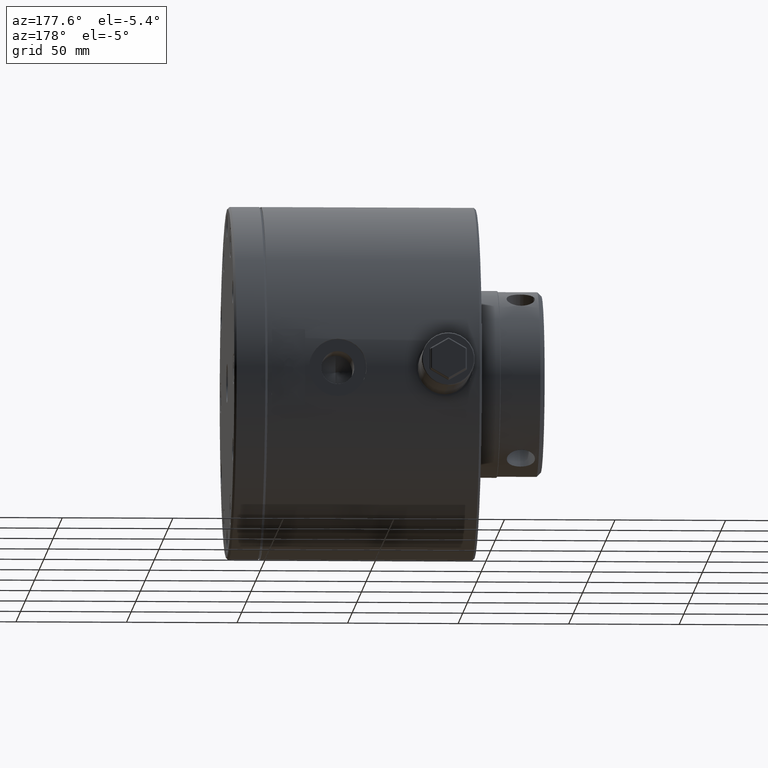
[diagram: clean part render]
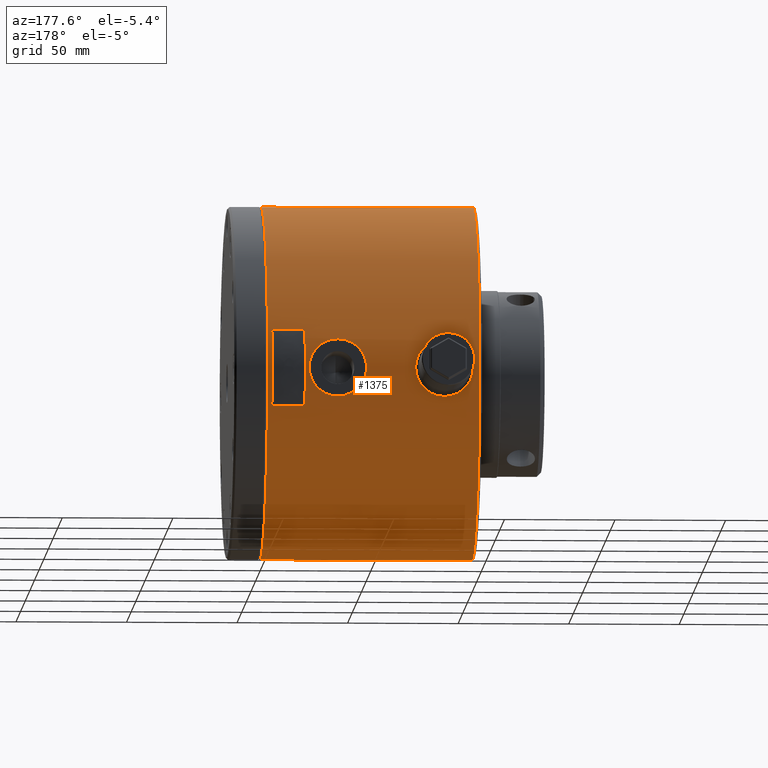
[diagram: same view with one face highlighted and labeled with its STEP entity id]
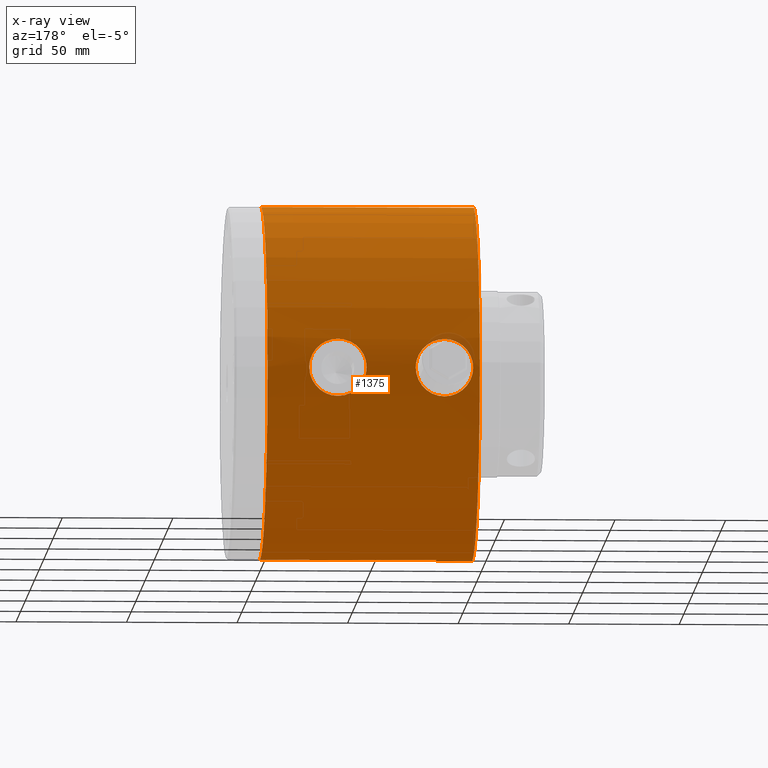
[diagram: x-ray of the same camera — body ghosted, the highlighted face saturated]
A machine part, auxiliary view. The second image highlights one B-rep face of the part: STEP entity #1375.
The next image is the same camera in x-ray: the body ghosted, the highlighted face saturated — about 1% of this face is hidden behind the body in this view.
In plain terms, the highlighted cylindrical surface (partial cylindrical patch) has radius 80 mm, axis along (1, 0, 0).
Its self-contained STEP definition (entity closure, byte-faithful):
#381 = CARTESIAN_POINT ( 'NONE',  ( -30.09964344900794900, 78.95383902079534300, 12.89546893762703000 ) ) ;
#536 = ORIENTED_EDGE ( 'NONE', *, *, #23124, .T. ) ;
#1013 = CARTESIAN_POINT ( 'NONE',  ( -75.81286066554427800, 79.04374652429665100, 12.33673770048331300 ) ) ;
#1026 = CARTESIAN_POINT ( 'NONE',  ( 0.0000000000000000000, 9.797174393178826100E-015, 80.00000000000000000 ) ) ;
#1121 = CARTESIAN_POINT ( 'NONE',  ( -67.66480960438912000, 79.89401141627573100, 4.191401066810772800 ) ) ;
#1209 = CARTESIAN_POINT ( 'NONE',  ( -20.13806835266995100, 79.79323827350121700, 5.760348108859330900 ) ) ;
#1219 = CARTESIAN_POINT ( 'NONE',  ( -72.08305420856973500, 79.33203430594967600, 10.31997314685027300 ) ) ;
#1319 = CARTESIAN_POINT ( 'NONE',  ( -67.43760634001266400, 79.92996197274713700, -3.371525206087473000 ) ) ;
#1375 = ADVANCED_FACE ( 'NONE', ( #2504, #19606, #24854 ), #6331, .T. ) ;
#1417 = CARTESIAN_POINT ( 'NONE',  ( -74.22299667483548500, 79.14389417287067400, -11.67705584014035100 ) ) ;
#1427 = CARTESIAN_POINT ( 'NONE',  ( -89.77522799559490400, 79.53918937189674000, 8.580657282837650600 ) ) ;
#1514 = CARTESIAN_POINT ( 'NONE',  ( -75.40433670215388400, 79.06937255033750500, -12.16806184160032200 ) ) ;
#1637 = CARTESIAN_POINT ( 'NONE',  ( -18.88235625100630700, 79.98648837467595700, -1.693760567031938200 ) ) ;
#1736 = CARTESIAN_POINT ( 'NONE',  ( -31.36248812587403400, 78.93672764930676100, -12.99973184691376100 ) ) ;
#2016 = CARTESIAN_POINT ( 'NONE',  ( -93.00000000000000000, 80.00000000000000000, -4.142082507333374800E-015 ) ) ;
#2031 = CARTESIAN_POINT ( 'NONE',  ( -43.64055780795961000, 79.81962784138552500, -5.383335847124600400 ) ) ;
#2439 = DIRECTION ( 'NONE',  ( 0.0000000000000000000, 0.0000000000000000000, -1.000000000000000000 ) ) ;
#2504 = FACE_BOUND ( 'NONE', #27626, .T. ) ;
#2682 = CARTESIAN_POINT ( 'NONE',  ( -42.37319983605495800, 79.64130795527019300, 7.575468859314091800 ) ) ;
#2703 = CARTESIAN_POINT ( 'NONE',  ( -96.00000000000000000, 0.0000000000000000000, -80.00000000000000000 ) ) ;
#2781 = CARTESIAN_POINT ( 'NONE',  ( -33.49891951828073600, 78.95050577261295600, 12.91689973074531700 ) ) ;
#2885 = CARTESIAN_POINT ( 'NONE',  ( -44.71541230277586700, 79.98613101206169100, 1.706288805139967600 ) ) ;
#2988 = CARTESIAN_POINT ( 'NONE',  ( -44.36384534968731000, 79.93018951058637400, 3.366342855497707300 ) ) ;
#3081 = CARTESIAN_POINT ( 'NONE',  ( -31.38017976504769300, 78.93665717339219200, 13.00015978043656300 ) ) ;
#3297 = CARTESIAN_POINT ( 'NONE',  ( -18.96847630013395000, 79.97275304758385100, 2.129100069173480500 ) ) ;
#3411 = CARTESIAN_POINT ( 'NONE',  ( -74.24143099862902800, 79.14556697331825300, 11.66278353110015700 ) ) ;
#3528 = CARTESIAN_POINT ( 'NONE',  ( -67.00000000000000000, 79.99999999999998600, 0.4245904416442586900 ) ) ;
#3593 = CARTESIAN_POINT ( 'NONE',  ( -92.99999999999998600, 80.00000000000001400, 0.8604759384809521600 ) ) ;
#3623 = CARTESIAN_POINT ( 'NONE',  ( -19.21852294762961900, 79.93288736820254300, 3.380932628697642900 ) ) ;
#3637 = CARTESIAN_POINT ( 'NONE',  ( -85.37163108470501500, 79.11827963390374000, 11.84587400951331800 ) ) ;
#3733 = CARTESIAN_POINT ( 'NONE',  ( -68.15195435480528400, 79.82073988824491600, -5.366851581470632100 ) ) ;
#3748 = CARTESIAN_POINT ( 'NONE',  ( -89.48969434867646600, 79.50450225451079700, 8.895215470127560300 ) ) ;
#3836 = CARTESIAN_POINT ( 'NONE',  ( -77.86893480804791100, 78.96435247455056600, -12.83113820291025000 ) ) ;
#3947 = CARTESIAN_POINT ( 'NONE',  ( -72.06823744942019500, 79.33108181988109200, -10.33468190108031800 ) ) ;
#4155 = CARTESIAN_POINT ( 'NONE',  ( -87.91257020495839900, 79.33158928487638700, -10.32343520517883400 ) ) ;
#4266 = CARTESIAN_POINT ( 'NONE',  ( -97.00000000000000000, 0.0000000000000000000, -80.00000000000000000 ) ) ;
#4269 = CARTESIAN_POINT ( 'NONE',  ( -43.96562697909858700, 79.86849603772576200, -4.601807715669837200 ) ) ;
#4369 = CARTESIAN_POINT ( 'NONE',  ( -39.71257020495833200, 79.33158928487637200, -10.32343520517884100 ) ) ;
#4383 = EDGE_CURVE ( 'NONE', #20057, #24185, #17180, .T. ) ;
#4574 = CARTESIAN_POINT ( 'NONE',  ( -43.45915193633449300, 79.79283473184713700, -5.765786677228317300 ) ) ;
#4898 = DIRECTION ( 'NONE',  ( 1.000000000000000000, 0.0000000000000000000, 0.0000000000000000000 ) ) ;
#5252 = CARTESIAN_POINT ( 'NONE',  ( -24.92632791272416500, 79.23461801229970500, 11.04226568565484400 ) ) ;
#5344 = CARTESIAN_POINT ( 'NONE',  ( -40.39160316312076300, 79.40064209146794400, 9.792904750514562600 ) ) ;
#5438 = VERTEX_POINT ( 'NONE', #30705 ) ;
#5446 = CARTESIAN_POINT ( 'NONE',  ( -34.75811009526137200, 78.99097685110076800, 12.66620468847097000 ) ) ;
#5555 = CARTESIAN_POINT ( 'NONE',  ( -28.42394444755519300, 79.00444634969737500, 12.58275967073811700 ) ) ;
#5754 = CARTESIAN_POINT ( 'NONE',  ( -18.82074836649238100, 79.99662021152426000, 0.8502336122172001700 ) ) ;
#5861 = CARTESIAN_POINT ( 'NONE',  ( -85.75451392133744800, 79.14527688470458600, 11.66473851177715200 ) ) ;
#6076 = CARTESIAN_POINT ( 'NONE',  ( -78.29964344900793100, 78.95383902079540000, 12.89546893762700600 ) ) ;
#6183 = CARTESIAN_POINT ( 'NONE',  ( -79.58017976504766000, 78.93665717339220600, 13.00015978043654200 ) ) ;
#6190 = CARTESIAN_POINT ( 'NONE',  ( -35.97557122104632300, 79.04598810698766400, -12.31858332975050500 ) ) ;
#6289 = CARTESIAN_POINT ( 'NONE',  ( -86.87236625009315100, 79.23448933905697800, 11.04324195382540800 ) ) ;
#6331 = CYLINDRICAL_SURFACE ( 'NONE', #26109, 80.00000000000000000 ) ;
#6394 = CARTESIAN_POINT ( 'NONE',  ( -91.25826035809342300, 79.73524363140778300, -6.513961436116923100 ) ) ;
#6412 = CARTESIAN_POINT ( 'NONE',  ( -20.53418683070336600, 79.73631017478381000, -6.500968332554022800 ) ) ;
#6496 = CARTESIAN_POINT ( 'NONE',  ( -67.08235625100627400, 79.98648837467594300, -1.693760567031966900 ) ) ;
#6512 = CARTESIAN_POINT ( 'NONE',  ( -19.62783383692260500, 79.86949329874201500, -4.584501325835229400 ) ) ;
#6726 = CARTESIAN_POINT ( 'NONE',  ( -43.05826035809339900, 79.73524363140778300, -6.513961436116925800 ) ) ;
#6826 = DIRECTION ( 'NONE',  ( 1.000000000000000000, 0.0000000000000000000, 0.0000000000000000000 ) ) ;
#7026 = CARTESIAN_POINT ( 'NONE',  ( -41.58476434054505700, 79.53859521750038700, -8.600812011084343600 ) ) ;
#7567 = CARTESIAN_POINT ( 'NONE',  ( -44.80000000000001800, 80.00000000000001400, 0.8604759384809525000 ) ) ;
#7821 = B_SPLINE_CURVE_WITH_KNOTS ( 'NONE', 3,
 ( #8523, #27873, #1637, #13410, #11164, #18601, #6512, #18496, #13615, #6412, #23329, #8834, #30525, #21016, #16041, #25739, #25540, #20704, #28286, #15828, #13819, #30731, #16243, #21116, #1736, #25430, #13510, #23134, #10945, #6190, #11054, #30424, #23947, #23744, #4369, #26053, #28584, #7026, #26267, #11578, #6726, #4574, #2031, #4269, #28389, #23645, #18905, #14111, #19010, #28489 ),
 .UNSPECIFIED., .F., .F.,
 ( 4, 2, 2, 2, 2, 2, 2, 2, 2, 2, 2, 2, 2, 2, 2, 2, 2, 2, 2, 2, 2, 2, 2, 2, 4 ),
 ( 0.04071145708490809400, 0.04325529113787240900, 0.04452720816435456300, 0.04579912519083671800, 0.04707104221731887200, 0.04834295924380102600, 0.05088679329676534100, 0.05343062734972965600, 0.05597446140269396500, 0.05724637842917612600, 0.05851829545565828700, 0.05979021248214044800, 0.06106212950862260200, 0.06360596356158693100, 0.06487788058806910600, 0.06614979761455128100, 0.06869363166751563100, 0.06996554869399780600, 0.07123746572047998100, 0.07378129977344433100, 0.07505321679992652000, 0.07632513382640869500, 0.07759705085289087000, 0.07886896787937305900, 0.08141280193233740900 ),
 .UNSPECIFIED. ) ;
#8177 = CARTESIAN_POINT ( 'NONE',  ( -18.80000000000000100, 80.00000000000000000, 6.098591710779075900E-015 ) ) ;
#8296 = CARTESIAN_POINT ( 'NONE',  ( -90.57319983605495400, 79.64130795527019300, 7.575468859314087300 ) ) ;
#8398 = CARTESIAN_POINT ( 'NONE',  ( -86.50396397425900800, 79.20329519700644000, 11.26405822252994700 ) ) ;
#8513 = CARTESIAN_POINT ( 'NONE',  ( -68.15378630199396100, 79.82046613181881900, 5.371071799080898000 ) ) ;
#8523 = CARTESIAN_POINT ( 'NONE',  ( -18.80000000000000100, 80.00000000000000000, 6.098591710779075900E-015 ) ) ;
#8610 = CARTESIAN_POINT ( 'NONE',  ( -81.69613664690930900, 78.95052415793117000, -12.91675882031245200 ) ) ;
#8710 = CARTESIAN_POINT ( 'NONE',  ( -79.56248812587408300, 78.93672764930677500, -12.99973184691378800 ) ) ;
#8720 = CARTESIAN_POINT ( 'NONE',  ( -81.69891951828067500, 78.95050577261294200, 12.91689973074529100 ) ) ;
#8814 = CARTESIAN_POINT ( 'NONE',  ( -68.73418683070335100, 79.73631017478379600, -6.500968332554045000 ) ) ;
#8834 = CARTESIAN_POINT ( 'NONE',  ( -21.46629296452822500, 79.60882538287315000, -7.933571463228618700 ) ) ;
#8921 = CARTESIAN_POINT ( 'NONE',  ( -76.62613917152486900, 79.00770160024821100, -12.56180135332665600 ) ) ;
#9023 = CARTESIAN_POINT ( 'NONE',  ( -78.28821820116313300, 78.95410843831774600, -12.89381964007660200 ) ) ;
#9198 = CARTESIAN_POINT ( 'NONE',  ( -96.00000000000000000, 9.797174393178826100E-015, 80.00000000000000000 ) ) ;
#9248 = ORIENTED_EDGE ( 'NONE', *, *, #25961, .F. ) ;
#9334 = CARTESIAN_POINT ( 'NONE',  ( -92.91544197976630000, 79.98613102572902300, -1.710113772030713600 ) ) ;
#9352 = ORIENTED_EDGE ( 'NONE', *, *, #4383, .F. ) ;
#9444 = EDGE_CURVE ( 'NONE', #9789, #15743, #23110, .T. ) ;
#9789 = VERTEX_POINT ( 'NONE', #22101 ) ;
#10001 = CARTESIAN_POINT ( 'NONE',  ( -30.95419304475494500, 78.94005873526263900, 12.97955862563378700 ) ) ;
#10094 = CARTESIAN_POINT ( 'NONE',  ( -32.65439712741153500, 78.93673657538181500, 12.99967764734549800 ) ) ;
#10194 = CARTESIAN_POINT ( 'NONE',  ( -41.57522799559492200, 79.53918937189674000, 8.580657282837659500 ) ) ;
#10398 = CARTESIAN_POINT ( 'NONE',  ( -27.61286066554427900, 79.04374652429666500, 12.33673770048334200 ) ) ;
#10710 = CARTESIAN_POINT ( 'NONE',  ( -18.80000000000001100, 80.00000000000000000, 0.4245904416442843300 ) ) ;
#10729 = CARTESIAN_POINT ( 'NONE',  ( -68.74112660721401400, 79.73532751860699400, 6.513066098808851100 ) ) ;
#10766 = DIRECTION ( 'NONE',  ( 0.0000000000000000000, 0.0000000000000000000, -1.000000000000000000 ) ) ;
#10834 = CARTESIAN_POINT ( 'NONE',  ( -73.48991790438864800, 79.20379298667492700, 11.26057137738809500 ) ) ;
#10939 = CARTESIAN_POINT ( 'NONE',  ( -67.02074836649237000, 79.99662021152424500, 0.8502336122171746400 ) ) ;
#10945 = CARTESIAN_POINT ( 'NONE',  ( -35.15693883780151200, 79.00697361087021900, -12.56637783584820200 ) ) ;
#11036 = CARTESIAN_POINT ( 'NONE',  ( -68.95548571414453000, 79.70524568839194000, -6.870259711525696900 ) ) ;
#11054 = CARTESIAN_POINT ( 'NONE',  ( -36.38096568131063400, 79.06852314666682000, -12.17356795494033500 ) ) ;
#11140 = CARTESIAN_POINT ( 'NONE',  ( -80.85089875520814900, 78.93659639264240000, -13.00052884443729800 ) ) ;
#11157 = CARTESIAN_POINT ( 'NONE',  ( -79.15419304475491900, 78.94005873526262500, 12.97955862563375900 ) ) ;
#11164 = CARTESIAN_POINT ( 'NONE',  ( -19.23760634001269000, 79.92996197274716500, -3.371525206087456100 ) ) ;
#11254 = CARTESIAN_POINT ( 'NONE',  ( -90.32325129288997800, 79.60745364977937300, -7.947522295468353100 ) ) ;
#11359 = CARTESIAN_POINT ( 'NONE',  ( -68.33310258704366900, 79.79396662134473700, -5.750186117154862100 ) ) ;
#11456 = CARTESIAN_POINT ( 'NONE',  ( -92.55810360373601500, 79.92928664717628400, -3.387570292187122700 ) ) ;
#11476 = EDGE_CURVE ( 'NONE', #16344, #20057, #20835, .T. ) ;
#11578 = CARTESIAN_POINT ( 'NONE',  ( -42.83793770464070900, 79.70433086481520500, -6.880922045899895400 ) ) ;
#12006 = AXIS2_PLACEMENT_3D ( 'NONE', #14422, #4898, #2439 ) ;
#12437 = CARTESIAN_POINT ( 'NONE',  ( -36.38969907606212900, 79.06904001774158500, 12.17020188619018100 ) ) ;
#12535 = CARTESIAN_POINT ( 'NONE',  ( -44.11575126609469800, 79.89156848175969100, 4.183867223431794200 ) ) ;
#12633 = CARTESIAN_POINT ( 'NONE',  ( -39.73796175344674700, 79.33165048441904300, 10.33049883139306000 ) ) ;
#12736 = CARTESIAN_POINT ( 'NONE',  ( -44.46703758824778400, 79.94652688575084200, 2.953977462207162800 ) ) ;
#12940 = DIRECTION ( 'NONE',  ( 1.000000000000000000, 0.0000000000000000000, 0.0000000000000000000 ) ) ;
#12947 = CARTESIAN_POINT ( 'NONE',  ( -18.90498865048305500, 79.98299563035327300, 1.703687898966019400 ) ) ;
#13177 = CARTESIAN_POINT ( 'NONE',  ( -77.87527977192419800, 78.96417310419866500, 12.83224306029899600 ) ) ;
#13283 = CARTESIAN_POINT ( 'NONE',  ( -70.20234012960349900, 79.54013144724281400, 8.587135848237368300 ) ) ;
#13380 = CARTESIAN_POINT ( 'NONE',  ( -92.66354086602132200, 79.94597173090390600, -2.969514336740558300 ) ) ;
#13398 = CARTESIAN_POINT ( 'NONE',  ( -67.00000000000000000, 80.00000000000000000, -1.658887645583564600E-014 ) ) ;
#13410 = CARTESIAN_POINT ( 'NONE',  ( -19.13293772171481800, 79.94653005217627100, -2.954508327815602800 ) ) ;
#13491 = CARTESIAN_POINT ( 'NONE',  ( -91.65915193633449600, 79.79283473184710800, -5.765786677228308400 ) ) ;
#13505 = CARTESIAN_POINT ( 'NONE',  ( -80.85439712741150200, 78.93673657538180100, 12.99967764734547000 ) ) ;
#13510 = CARTESIAN_POINT ( 'NONE',  ( -33.49613664690928500, 78.95052415793117000, -12.91675882031242900 ) ) ;
#13599 = CARTESIAN_POINT ( 'NONE',  ( -82.94422694423443000, 78.99047770852465100, -12.66930985443253200 ) ) ;
#13615 = CARTESIAN_POINT ( 'NONE',  ( -20.13310258704364100, 79.79396662134473700, -5.750186117154837200 ) ) ;
#13699 = CARTESIAN_POINT ( 'NONE',  ( -91.03793770464072600, 79.70433086481519100, -6.880922045899897200 ) ) ;
#13819 = CARTESIAN_POINT ( 'NONE',  ( -28.83789536762789400, 78.99114878722696200, -12.66512860500878200 ) ) ;
#14111 = CARTESIAN_POINT ( 'NONE',  ( -44.71544197976630400, 79.98613102572900900, -1.710113772030727600 ) ) ;
#14356 = VERTEX_POINT ( 'NONE', #28040 ) ;
#14422 = CARTESIAN_POINT ( 'NONE',  ( 0.0000000000000000000, 0.0000000000000000000, 0.0000000000000000000 ) ) ;
#14497 = B_SPLINE_CURVE_WITH_KNOTS ( 'NONE', 3,
 ( #20469, #25296, #6496, #23210, #1319, #30716, #18257, #3733, #11359, #8814, #11036, #20689, #30398, #25621, #3947, #25717, #1417, #1514, #15808, #8921, #23515, #3836, #9023, #16230, #8710, #11140, #8610, #13599, #30297, #25522, #28272, #27960, #18479, #18679, #4155, #23312, #20887, #28167, #11254, #13699, #6394, #13491, #21101, #30615, #25923, #11456, #13380, #9334, #16535, #2016 ),
 .UNSPECIFIED., .F., .F.,
 ( 4, 2, 2, 2, 2, 2, 2, 2, 2, 2, 2, 2, 2, 2, 2, 2, 2, 2, 2, 2, 2, 2, 2, 2, 4 ),
 ( 0.04071145708490815600, 0.04325529113787245800, 0.04452720816435461200, 0.04579912519083675900, 0.04707104221731890600, 0.04834295924380106100, 0.05088679329676538300, 0.05343062734972971200, 0.05597446140269403400, 0.05724637842917620200, 0.05851829545565837000, 0.05979021248214053100, 0.06106212950862269900, 0.06360596356158707000, 0.06487788058806925900, 0.06614979761455143400, 0.06869363166751581200, 0.06996554869399798600, 0.07123746572048014800, 0.07378129977344449800, 0.07505321679992668600, 0.07632513382640887500, 0.07759705085289105000, 0.07886896787937322500, 0.08141280193233760300 ),
 .UNSPECIFIED. ) ;
#14760 = CARTESIAN_POINT ( 'NONE',  ( -24.22289561683041000, 79.29873791193084300, 10.57196711130608700 ) ) ;
#14868 = CARTESIAN_POINT ( 'NONE',  ( -35.17606784740901600, 79.00779916080468000, 12.56118633509741000 ) ) ;
#14972 = CARTESIAN_POINT ( 'NONE',  ( -22.00234012960348900, 79.54013144724281400, 8.587135848237387800 ) ) ;
#15071 = CARTESIAN_POINT ( 'NONE',  ( -37.55451392133746000, 79.14527688470458600, 11.66473851177717300 ) ) ;
#15145 = CIRCLE ( 'NONE', #24351, 80.00000000000000000 ) ;
#15501 = CARTESIAN_POINT ( 'NONE',  ( -76.62394444755516100, 79.00444634969736100, 12.58275967073808800 ) ) ;
#15606 = CARTESIAN_POINT ( 'NONE',  ( -67.10498865048305100, 79.98299563035327300, 1.703687898965990900 ) ) ;
#15678 = CARTESIAN_POINT ( 'NONE',  ( -93.00000000000000000, 80.00000000000000000, -4.142082507333374800E-015 ) ) ;
#15743 = VERTEX_POINT ( 'NONE', #24607 ) ;
#15808 = CARTESIAN_POINT ( 'NONE',  ( -75.81028180546272200, 79.04674385332758400, -12.31373426628660700 ) ) ;
#15828 = CARTESIAN_POINT ( 'NONE',  ( -28.42613917152488400, 79.00770160024818300, -12.56180135332662600 ) ) ;
#15927 = CARTESIAN_POINT ( 'NONE',  ( -84.19065013322435200, 79.04679653637349200, 12.31339464632937300 ) ) ;
#16041 = CARTESIAN_POINT ( 'NONE',  ( -23.86823744942021000, 79.33108181988110600, -10.33468190108028600 ) ) ;
#16230 = CARTESIAN_POINT ( 'NONE',  ( -79.13439864085611900, 78.94029584487098800, -12.97811681734689900 ) ) ;
#16243 = CARTESIAN_POINT ( 'NONE',  ( -30.08821820116311600, 78.95410843831773200, -12.89381964007657200 ) ) ;
#16344 = VERTEX_POINT ( 'NONE', #2703 ) ;
#16434 = DIRECTION ( 'NONE',  ( 0.0000000000000000000, 0.0000000000000000000, -1.000000000000000000 ) ) ;
#16535 = CARTESIAN_POINT ( 'NONE',  ( -93.00000000000000000, 80.00000000000000000, -0.8602622065819369700 ) ) ;
#16589 = EDGE_LOOP ( 'NONE', ( #9248, #22271 ) ) ;
#17180 = CIRCLE ( 'NONE', #12006, 80.00000000000000000 ) ;
#17310 = CARTESIAN_POINT ( 'NONE',  ( -43.48037361146616300, 79.79553171620578700, 5.770158506110940200 ) ) ;
#17576 = B_SPLINE_CURVE_WITH_KNOTS ( 'NONE', 3,
 ( #15678, #3593, #22912, #18273, #18051, #30417, #25634, #27975, #20799, #8296, #30307, #1427, #3748, #18163, #27868, #6289, #8398, #5861, #3637, #23226, #15927, #20700, #25308, #8720, #13505, #6183, #11157, #6076, #13177, #15501, #1013, #17944, #3411, #10834, #30093, #27758, #1219, #20374, #22807, #13283, #25203, #20596, #10729, #23017, #8513, #1121, #27648, #25422, #15606, #10939, #3528, #13398 ),
 .UNSPECIFIED., .F., .F.,
 ( 4, 2, 2, 2, 2, 2, 2, 2, 2, 2, 2, 2, 2, 2, 2, 2, 2, 2, 2, 2, 2, 2, 2, 2, 2, 4 ),
 ( 7.349960090600451200E-019, 0.002544466067806842200, 0.003816699101710262400, 0.005088932135613684300, 0.007633398203420515200, 0.008905631237323918100, 0.01017786427122732200, 0.01272233033903413300, 0.01399456337293752300, 0.01526679640684091100, 0.01653902944074429900, 0.01781126247464769100, 0.02035572854245442500, 0.02162796157635781700, 0.02290019461026120500, 0.02544466067806794300, 0.02671689371197130700, 0.02798912674587467400, 0.02926135977977804100, 0.03053359281368140500, 0.03307805888148810500, 0.03435029191539144100, 0.03562252494929478400, 0.03816699101710147000, 0.03943922405100482000, 0.04071145708490815600 ),
 .UNSPECIFIED. ) ;
#17610 = CARTESIAN_POINT ( 'NONE',  ( -43.08088295147355500, 79.73731768988081100, 6.516349643896920600 ) ) ;
#17944 = CARTESIAN_POINT ( 'NONE',  ( -74.63106713130220300, 79.11808182929083000, 11.84720929483328800 ) ) ;
#18051 = CARTESIAN_POINT ( 'NONE',  ( -92.56384534968734100, 79.93018951058637400, 3.366342855497708600 ) ) ;
#18163 = CARTESIAN_POINT ( 'NONE',  ( -88.59160316312075200, 79.40064209146794400, 9.792904750514555400 ) ) ;
#18200 = CARTESIAN_POINT ( 'NONE',  ( -97.00000000000000000, 0.0000000000000000000, 0.0000000000000000000 ) ) ;
#18257 = CARTESIAN_POINT ( 'NONE',  ( -67.82783383692259300, 79.86949329874200000, -4.584501325835248100 ) ) ;
#18273 = CARTESIAN_POINT ( 'NONE',  ( -92.66703758824778000, 79.94652688575088500, 2.953977462207166400 ) ) ;
#18479 = CARTESIAN_POINT ( 'NONE',  ( -86.50660547075675300, 79.20126350147263800, -11.28655888877269600 ) ) ;
#18496 = CARTESIAN_POINT ( 'NONE',  ( -19.95195435480527400, 79.82073988824491600, -5.366851581470610800 ) ) ;
#18601 = CARTESIAN_POINT ( 'NONE',  ( -19.48486186074684000, 79.89147460076829100, -4.185485550672048300 ) ) ;
#18679 = CARTESIAN_POINT ( 'NONE',  ( -87.56717534498385200, 79.29778180422916000, -10.57915114145375800 ) ) ;
#18905 = CARTESIAN_POINT ( 'NONE',  ( -44.46354086602131200, 79.94597173090390600, -2.969514336740569900 ) ) ;
#19010 = CARTESIAN_POINT ( 'NONE',  ( -44.79999999999999000, 79.99999999999998600, -0.8602622065819436300 ) ) ;
#19127 = VERTEX_POINT ( 'NONE', #9198 ) ;
#19606 = FACE_BOUND ( 'NONE', #16589, .T. ) ;
#19748 = ORIENTED_EDGE ( 'NONE', *, *, #27935, .F. ) ;
#19759 = CARTESIAN_POINT ( 'NONE',  ( -25.28991790438862700, 79.20379298667489800, 11.26057137738812100 ) ) ;
#19858 = CARTESIAN_POINT ( 'NONE',  ( -38.30396397425901300, 79.20329519700645400, 11.26405822252996100 ) ) ;
#19942 = EDGE_LOOP ( 'NONE', ( #27789, #536, #9352, #25675 ) ) ;
#19956 = CARTESIAN_POINT ( 'NONE',  ( -37.17163108470500500, 79.11827963390372500, 11.84587400951333800 ) ) ;
#19977 = EDGE_CURVE ( 'NONE', #5438, #14356, #14497, .T. ) ;
#20057 = VERTEX_POINT ( 'NONE', #21821 ) ;
#20062 = CARTESIAN_POINT ( 'NONE',  ( -29.67527977192418800, 78.96417310419862200, 12.83224306029901400 ) ) ;
#20364 = CARTESIAN_POINT ( 'NONE',  ( -20.75975119080466400, 79.70465953693920400, 6.876914708840176100 ) ) ;
#20374 = CARTESIAN_POINT ( 'NONE',  ( -71.42723738615011100, 79.40016306840529100, 9.782004783413983200 ) ) ;
#20465 = VECTOR ( 'NONE', #12940, 1000.000000000000000 ) ;
#20468 = CARTESIAN_POINT ( 'NONE',  ( -21.46561266371560700, 79.60893287903169800, 7.932000826402526400 ) ) ;
#20469 = CARTESIAN_POINT ( 'NONE',  ( -67.00000000000000000, 80.00000000000000000, -1.658887645583564600E-014 ) ) ;
#20596 = CARTESIAN_POINT ( 'NONE',  ( -68.95975119080469500, 79.70465953693921800, 6.876914708840155700 ) ) ;
#20633 = DIRECTION ( 'NONE',  ( 1.000000000000000000, 0.0000000000000000000, 0.0000000000000000000 ) ) ;
#20689 = CARTESIAN_POINT ( 'NONE',  ( -69.66629296452825300, 79.60882538287316400, -7.933571463228653400 ) ) ;
#20700 = CARTESIAN_POINT ( 'NONE',  ( -83.37606784740900400, 79.00779916080465200, 12.56118633509738900 ) ) ;
#20704 = CARTESIAN_POINT ( 'NONE',  ( -27.20433670215386400, 79.06937255033753300, -12.16806184160029500 ) ) ;
#20799 = CARTESIAN_POINT ( 'NONE',  ( -91.28088295147351500, 79.73731768988078300, 6.516349643896913500 ) ) ;
#20835 = LINE ( 'NONE', #4266, #24218 ) ;
#20887 = CARTESIAN_POINT ( 'NONE',  ( -88.88692786782337400, 79.43481047954506400, -9.497442191696080700 ) ) ;
#21016 = CARTESIAN_POINT ( 'NONE',  ( -23.20053563331227800, 79.40149318801790900, -9.786064420686281900 ) ) ;
#21101 = CARTESIAN_POINT ( 'NONE',  ( -91.84055780795961300, 79.81962784138549700, -5.383335847124579100 ) ) ;
#21116 = CARTESIAN_POINT ( 'NONE',  ( -30.93439864085608400, 78.94029584487098800, -12.97811681734686900 ) ) ;
#21821 = CARTESIAN_POINT ( 'NONE',  ( 0.0000000000000000000, 0.0000000000000000000, -80.00000000000000000 ) ) ;
#22074 = CARTESIAN_POINT ( 'NONE',  ( -43.97025113866475000, 79.86919901514167500, 4.589820415234038700 ) ) ;
#22101 = CARTESIAN_POINT ( 'NONE',  ( -44.79999999999999700, 80.00000000000000000, -6.671203078272069900E-015 ) ) ;
#22177 = CARTESIAN_POINT ( 'NONE',  ( -23.88305420856972100, 79.33203430594964800, 10.31997314685029500 ) ) ;
#22271 = ORIENTED_EDGE ( 'NONE', *, *, #19977, .F. ) ;
#22807 = CARTESIAN_POINT ( 'NONE',  ( -71.11046874302181200, 79.43508896511644900, 9.495235346436786000 ) ) ;
#22912 = CARTESIAN_POINT ( 'NONE',  ( -92.91541230277586300, 79.98613101206170500, 1.706288805139967400 ) ) ;
#23006 = CARTESIAN_POINT ( 'NONE',  ( -19.46480960438912100, 79.89401141627574500, 4.191401066810792400 ) ) ;
#23017 = CARTESIAN_POINT ( 'NONE',  ( -68.33806835266995000, 79.79323827350121700, 5.760348108859305100 ) ) ;
#23110 = B_SPLINE_CURVE_WITH_KNOTS ( 'NONE', 3,
 ( #24779, #7567, #2885, #12736, #2988, #12535, #22074, #17310, #17610, #2682, #27214, #10194, #24883, #5344, #12633, #29542, #19858, #15071, #19956, #12437, #24487, #14868, #5446, #2781, #10094, #3081, #10001, #381, #20062, #5555, #10398, #27310, #29242, #19759, #5252, #14760, #22177, #27019, #29445, #14972, #20468, #20364, #27420, #1209, #25409, #23006, #3623, #3297, #12947, #5754, #10710, #8177 ),
 .UNSPECIFIED., .F., .F.,
 ( 4, 2, 2, 2, 2, 2, 2, 2, 2, 2, 2, 2, 2, 2, 2, 2, 2, 2, 2, 2, 2, 2, 2, 2, 2, 4 ),
 ( 1.722217478803037700E-018, 0.002544466067806746300, 0.003816699101710119700, 0.005088932135613495300, 0.007633398203420245500, 0.008905631237323621500, 0.01017786427122699600, 0.01272233033903374800, 0.01399456337293711800, 0.01526679640684049100, 0.01653902944074386200, 0.01781126247464723600, 0.02035572854245398500, 0.02162796157635736900, 0.02290019461026075400, 0.02544466067806751300, 0.02671689371197089000, 0.02798912674587426800, 0.02926135977977765300, 0.03053359281368103400, 0.03307805888148779300, 0.03435029191539117800, 0.03562252494929456200, 0.03816699101710132500, 0.03943922405100470900, 0.04071145708490809400 ),
 .UNSPECIFIED. ) ;
#23124 = EDGE_CURVE ( 'NONE', #19127, #24185, #28749, .T. ) ;
#23134 = CARTESIAN_POINT ( 'NONE',  ( -34.74422694423442700, 78.99047770852465100, -12.66930985443251400 ) ) ;
#23210 = CARTESIAN_POINT ( 'NONE',  ( -67.33293772171481400, 79.94653005217622900, -2.954508327815629400 ) ) ;
#23226 = CARTESIAN_POINT ( 'NONE',  ( -84.58969907606216100, 79.06904001774161400, 12.17020188619016500 ) ) ;
#23312 = CARTESIAN_POINT ( 'NONE',  ( -88.57251924528969800, 79.40012832122367600, -9.782330779168084700 ) ) ;
#23329 = CARTESIAN_POINT ( 'NONE',  ( -20.75548571414451600, 79.70524568839196900, -6.870259711525659600 ) ) ;
#23515 = CARTESIAN_POINT ( 'NONE',  ( -77.03789536762795400, 78.99114878722699000, -12.66512860500881600 ) ) ;
#23645 = CARTESIAN_POINT ( 'NONE',  ( -44.35810360373598400, 79.92928664717625500, -3.387570292187162700 ) ) ;
#23744 = CARTESIAN_POINT ( 'NONE',  ( -39.36717534498384900, 79.29778180422916000, -10.57915114145374100 ) ) ;
#23947 = CARTESIAN_POINT ( 'NONE',  ( -38.30660547075677200, 79.20126350147266700, -11.28655888877268500 ) ) ;
#24185 = VERTEX_POINT ( 'NONE', #1026 ) ;
#24218 = VECTOR ( 'NONE', #6826, 1000.000000000000000 ) ;
#24351 = AXIS2_PLACEMENT_3D ( 'NONE', #28364, #28670, #16434 ) ;
#24487 = CARTESIAN_POINT ( 'NONE',  ( -35.99065013322437100, 79.04679653637350600, 12.31339464632938900 ) ) ;
#24607 = CARTESIAN_POINT ( 'NONE',  ( -18.80000000000000100, 80.00000000000000000, 6.098591710779075900E-015 ) ) ;
#24779 = CARTESIAN_POINT ( 'NONE',  ( -44.79999999999999700, 80.00000000000000000, -6.671203078272069900E-015 ) ) ;
#24854 = FACE_OUTER_BOUND ( 'NONE', #19942, .T. ) ;
#24883 = CARTESIAN_POINT ( 'NONE',  ( -41.28969434867650500, 79.50450225451081100, 8.895215470127563900 ) ) ;
#25203 = CARTESIAN_POINT ( 'NONE',  ( -69.66561266371560600, 79.60893287903169800, 7.932000826402503300 ) ) ;
#25296 = CARTESIAN_POINT ( 'NONE',  ( -66.99999999999998600, 80.00000000000001400, -0.8489699569457469500 ) ) ;
#25308 = CARTESIAN_POINT ( 'NONE',  ( -82.95811009526137500, 78.99097685110078300, 12.66620468847094500 ) ) ;
#25409 = CARTESIAN_POINT ( 'NONE',  ( -19.95378630199395800, 79.82046613181880400, 5.371071799080923800 ) ) ;
#25422 = CARTESIAN_POINT ( 'NONE',  ( -67.16847630013391800, 79.97275304758383600, 2.129100069173453800 ) ) ;
#25430 = CARTESIAN_POINT ( 'NONE',  ( -32.65089875520813900, 78.93659639264240000, -13.00052884443727800 ) ) ;
#25522 = CARTESIAN_POINT ( 'NONE',  ( -84.17557122104636800, 79.04598810698765000, -12.31858332975050800 ) ) ;
#25540 = CARTESIAN_POINT ( 'NONE',  ( -26.02299667483546500, 79.14389417287068800, -11.67705584014032500 ) ) ;
#25621 = CARTESIAN_POINT ( 'NONE',  ( -71.40053563331227300, 79.40149318801789500, -9.786064420686310300 ) ) ;
#25634 = CARTESIAN_POINT ( 'NONE',  ( -92.17025113866475300, 79.86919901514167500, 4.589820415234020100 ) ) ;
#25675 = ORIENTED_EDGE ( 'NONE', *, *, #11476, .F. ) ;
#25717 = CARTESIAN_POINT ( 'NONE',  ( -73.47740930437022700, 79.20260017787674700, -11.27715911799513600 ) ) ;
#25739 = CARTESIAN_POINT ( 'NONE',  ( -25.27740930437020200, 79.20260017787673200, -11.27715911799510500 ) ) ;
#25923 = CARTESIAN_POINT ( 'NONE',  ( -92.30929126449299800, 79.89057234266397200, -4.202730918409167200 ) ) ;
#25961 = EDGE_CURVE ( 'NONE', #14356, #5438, #17576, .T. ) ;
#26053 = CARTESIAN_POINT ( 'NONE',  ( -40.37251924528963100, 79.40012832122360500, -9.782330779168093600 ) ) ;
#26109 = AXIS2_PLACEMENT_3D ( 'NONE', #18200, #20633, #10766 ) ;
#26267 = CARTESIAN_POINT ( 'NONE',  ( -42.12325129288995400, 79.60745364977941600, -7.947522295468349500 ) ) ;
#27019 = CARTESIAN_POINT ( 'NONE',  ( -23.22723738615010800, 79.40016306840524900, 9.782004783414002700 ) ) ;
#27214 = CARTESIAN_POINT ( 'NONE',  ( -42.11785047949339100, 79.60769813334495400, 7.919894144128159400 ) ) ;
#27310 = CARTESIAN_POINT ( 'NONE',  ( -26.43106713130219600, 79.11808182929084400, 11.84720929483330900 ) ) ;
#27411 = CARTESIAN_POINT ( 'NONE',  ( -97.00000000000000000, 9.797174393178826100E-015, 80.00000000000000000 ) ) ;
#27420 = CARTESIAN_POINT ( 'NONE',  ( -20.54112660721401800, 79.73532751860697900, 6.513066098808880400 ) ) ;
#27626 = EDGE_LOOP ( 'NONE', ( #28494, #19748 ) ) ;
#27648 = CARTESIAN_POINT ( 'NONE',  ( -67.41852294762961200, 79.93288736820252900, 3.380932628697613600 ) ) ;
#27758 = CARTESIAN_POINT ( 'NONE',  ( -72.42289561683043100, 79.29873791193087100, 10.57196711130607400 ) ) ;
#27789 = ORIENTED_EDGE ( 'NONE', *, *, #30494, .T. ) ;
#27868 = CARTESIAN_POINT ( 'NONE',  ( -87.93796175344672900, 79.33165048441905800, 10.33049883139304900 ) ) ;
#27873 = CARTESIAN_POINT ( 'NONE',  ( -18.80000000000000400, 80.00000000000000000, -0.8489699569457234100 ) ) ;
#27935 = EDGE_CURVE ( 'NONE', #15743, #9789, #7821, .T. ) ;
#27960 = CARTESIAN_POINT ( 'NONE',  ( -85.76017953824317900, 79.14268186256615000, -11.68521908201937100 ) ) ;
#27975 = CARTESIAN_POINT ( 'NONE',  ( -91.68037361146616600, 79.79553171620578700, 5.770158506110926800 ) ) ;
#28040 = CARTESIAN_POINT ( 'NONE',  ( -93.00000000000000000, 80.00000000000000000, -4.142082507333374800E-015 ) ) ;
#28167 = CARTESIAN_POINT ( 'NONE',  ( -89.78476434054506700, 79.53859521750035800, -8.600812011084340000 ) ) ;
#28272 = CARTESIAN_POINT ( 'NONE',  ( -84.58096568131065900, 79.06852314666682000, -12.17356795494034700 ) ) ;
#28286 = CARTESIAN_POINT ( 'NONE',  ( -27.61028180546267000, 79.04674385332758400, -12.31373426628658200 ) ) ;
#28364 = CARTESIAN_POINT ( 'NONE',  ( -96.00000000000000000, 0.0000000000000000000, 0.0000000000000000000 ) ) ;
#28389 = CARTESIAN_POINT ( 'NONE',  ( -44.10929126449296700, 79.89057234266397200, -4.202730918409203700 ) ) ;
#28489 = CARTESIAN_POINT ( 'NONE',  ( -44.79999999999999700, 80.00000000000000000, -6.671203078272069900E-015 ) ) ;
#28494 = ORIENTED_EDGE ( 'NONE', *, *, #9444, .F. ) ;
#28584 = CARTESIAN_POINT ( 'NONE',  ( -40.68692786782331400, 79.43481047954503500, -9.497442191696079000 ) ) ;
#28670 = DIRECTION ( 'NONE',  ( 1.000000000000000000, 0.0000000000000000000, 0.0000000000000000000 ) ) ;
#28749 = LINE ( 'NONE', #27411, #20465 ) ;
#29242 = CARTESIAN_POINT ( 'NONE',  ( -26.04143099862902800, 79.14556697331823900, 11.66278353110017800 ) ) ;
#29445 = CARTESIAN_POINT ( 'NONE',  ( -22.91046874302178400, 79.43508896511643500, 9.495235346436803800 ) ) ;
#29542 = CARTESIAN_POINT ( 'NONE',  ( -38.67236625009314100, 79.23448933905697800, 11.04324195382542100 ) ) ;
#30093 = CARTESIAN_POINT ( 'NONE',  ( -73.12632791272416500, 79.23461801229973400, 11.04226568565482900 ) ) ;
#30297 = CARTESIAN_POINT ( 'NONE',  ( -83.35693883780155000, 79.00697361087019000, -12.56637783584821500 ) ) ;
#30307 = CARTESIAN_POINT ( 'NONE',  ( -90.31785047949337300, 79.60769813334495400, 7.919894144128150500 ) ) ;
#30398 = CARTESIAN_POINT ( 'NONE',  ( -70.20308982275904000, 79.54008915077884000, -8.587106335595638700 ) ) ;
#30417 = CARTESIAN_POINT ( 'NONE',  ( -92.31575126609470800, 79.89156848175969100, 4.183867223431796800 ) ) ;
#30424 = CARTESIAN_POINT ( 'NONE',  ( -37.56017953824312600, 79.14268186256612100, -11.68521908201936400 ) ) ;
#30494 = EDGE_CURVE ( 'NONE', #16344, #19127, #15145, .T. ) ;
#30525 = CARTESIAN_POINT ( 'NONE',  ( -22.00308982275903000, 79.54008915077884000, -8.587106335595603200 ) ) ;
#30615 = CARTESIAN_POINT ( 'NONE',  ( -92.16562697909860400, 79.86849603772579100, -4.601807715669809600 ) ) ;
#30705 = CARTESIAN_POINT ( 'NONE',  ( -67.00000000000000000, 80.00000000000000000, -1.658887645583564600E-014 ) ) ;
#30716 = CARTESIAN_POINT ( 'NONE',  ( -67.68486186074682100, 79.89147460076829100, -4.185485550672067000 ) ) ;
#30731 = CARTESIAN_POINT ( 'NONE',  ( -29.66893480804791500, 78.96435247455056600, -12.83113820291022500 ) ) ;